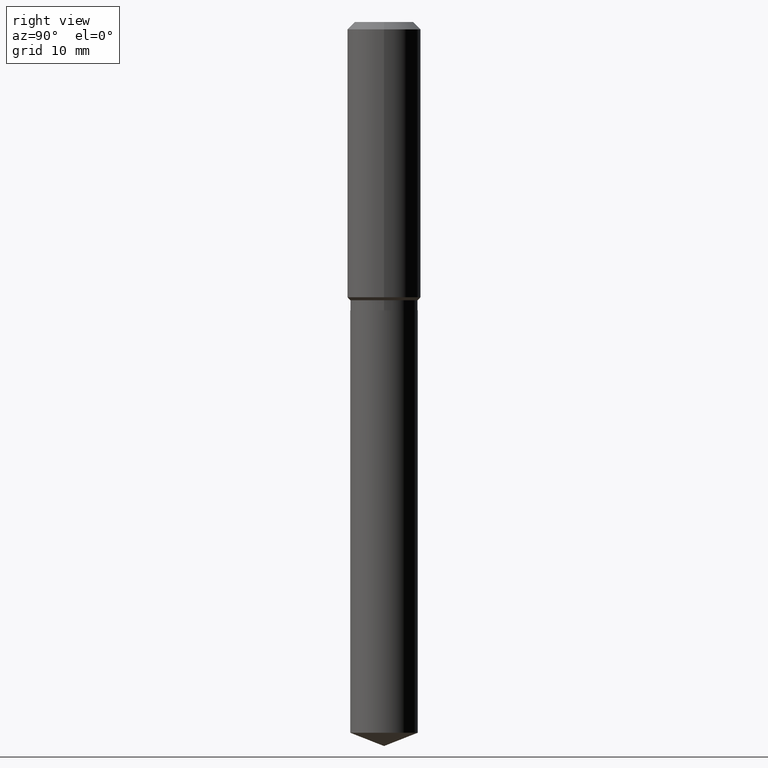
[diagram: clean part render]
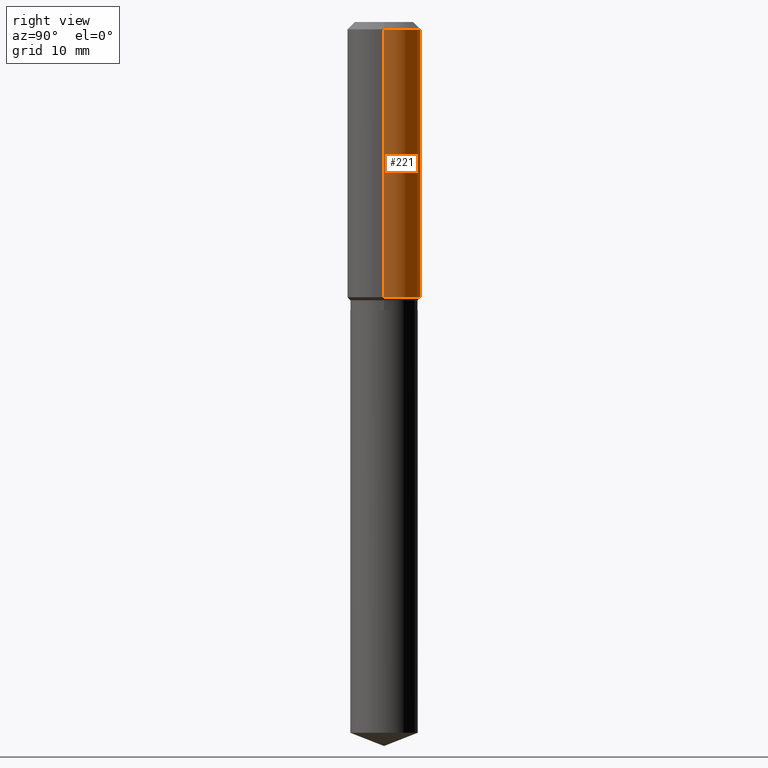
[diagram: same view with one face highlighted and labeled with its STEP entity id]
A machine part, right view. The second image highlights one B-rep face of the part: STEP entity #221.
In plain terms, the highlighted cylindrical surface (partial cylindrical patch) has radius 5.9995 mm, axis along (-0, 0, 1).
Its self-contained STEP definition (entity closure, byte-faithful):
#46 = AXIS2_PLACEMENT_3D ( 'NONE', #462, #237, #256 ) ;
#57 = ORIENTED_EDGE ( 'NONE', *, *, #463, .T. ) ;
#75 = EDGE_CURVE ( 'NONE', #356, #432, #447, .T. ) ;
#76 = ORIENTED_EDGE ( 'NONE', *, *, #163, .F. ) ;
#86 = CIRCLE ( 'NONE', #319, 0.2361999999999999933 ) ;
#105 = DIRECTION ( 'NONE',  ( -2.445468806185136877E-29, 3.491481338843145188E-15, 1.000000000000000000 ) ) ;
#116 = CARTESIAN_POINT ( 'NONE',  ( 0.2362000000000001043, -1.649375784469496920E-15, 1.151752954443000508E-29 ) ) ;
#126 = VECTOR ( 'NONE', #418, 39.37007874015748143 ) ;
#137 = DIRECTION ( 'NONE',  ( 1.000000000000000000, -6.982962677686266711E-15, 4.876176775795935793E-29 ) ) ;
#148 = CIRCLE ( 'NONE', #46, 0.2362000000000002153 ) ;
#163 = EDGE_CURVE ( 'NONE', #218, #389, #380, .T. ) ;
#168 = VECTOR ( 'NONE', #105, 39.37007874015748143 ) ;
#174 = FACE_OUTER_BOUND ( 'NONE', #466, .T. ) ;
#201 = DIRECTION ( 'NONE',  ( 1.000000000000000000, -6.982962677686266711E-15, 0.000000000000000000 ) ) ;
#214 = CYLINDRICAL_SURFACE ( 'NONE', #242, 0.2362000000000001043 ) ;
#218 = VERTEX_POINT ( 'NONE', #441 ) ;
#221 = ADVANCED_FACE ( 'NONE', ( #174 ), #214, .T. ) ;
#235 = CARTESIAN_POINT ( 'NONE',  ( -0.2362000000000002153, -4.487828676598578936E-15, -1.766049999999999898 ) ) ;
#237 = DIRECTION ( 'NONE',  ( -2.445468806185136597E-29, 3.491481338843145583E-15, 1.000000000000000000 ) ) ;
#242 = AXIS2_PLACEMENT_3D ( 'NONE', #329, #477, #137 ) ;
#245 = ORIENTED_EDGE ( 'NONE', *, *, #298, .F. ) ;
#256 = DIRECTION ( 'NONE',  ( 1.000000000000000000, -6.982962677686266711E-15, 0.000000000000000000 ) ) ;
#281 = CARTESIAN_POINT ( 'NONE',  ( 1.155239464041865506E-30, -1.649375784469511859E-16, -0.04724000000000028177 ) ) ;
#298 = EDGE_CURVE ( 'NONE', #389, #432, #86, .T. ) ;
#319 = AXIS2_PLACEMENT_3D ( 'NONE', #281, #431, #201 ) ;
#323 = ORIENTED_EDGE ( 'NONE', *, *, #75, .T. ) ;
#324 = CARTESIAN_POINT ( 'NONE',  ( 0.2361999999999999933, -1.814313362916447440E-15, -0.04724000000000028177 ) ) ;
#329 = CARTESIAN_POINT ( 'NONE',  ( 0.000000000000000000, 0.000000000000000000, 0.000000000000000000 ) ) ;
#353 = CARTESIAN_POINT ( 'NONE',  ( -0.2361999999999999933, -1.487232156590086334E-15, -0.04724000000000028177 ) ) ;
#356 = VERTEX_POINT ( 'NONE', #235 ) ;
#380 = LINE ( 'NONE', #116, #126 ) ;
#389 = VERTEX_POINT ( 'NONE', #324 ) ;
#418 = DIRECTION ( 'NONE',  ( -2.445468806185136877E-29, 3.491481338843145188E-15, 1.000000000000000000 ) ) ;
#431 = DIRECTION ( 'NONE',  ( -2.445468806185136597E-29, 3.491481338843145583E-15, 1.000000000000000000 ) ) ;
#432 = VERTEX_POINT ( 'NONE', #353 ) ;
#441 = CARTESIAN_POINT ( 'NONE',  ( 0.2362000000000002153, -7.815506402933435799E-15, -1.766049999999999898 ) ) ;
#442 = CARTESIAN_POINT ( 'NONE',  ( -0.2362000000000001043, 1.678301941865357380E-15, -1.161852468318209317E-29 ) ) ;
#447 = LINE ( 'NONE', #442, #168 ) ;
#462 = CARTESIAN_POINT ( 'NONE',  ( 4.318820185163259676E-29, -6.166130618463936908E-15, -1.766049999999999898 ) ) ;
#463 = EDGE_CURVE ( 'NONE', #218, #356, #148, .T. ) ;
#466 = EDGE_LOOP ( 'NONE', ( #57, #323, #245, #76 ) ) ;
#477 = DIRECTION ( 'NONE',  ( -2.445468806185136597E-29, 3.491481338843145583E-15, 1.000000000000000000 ) ) ;